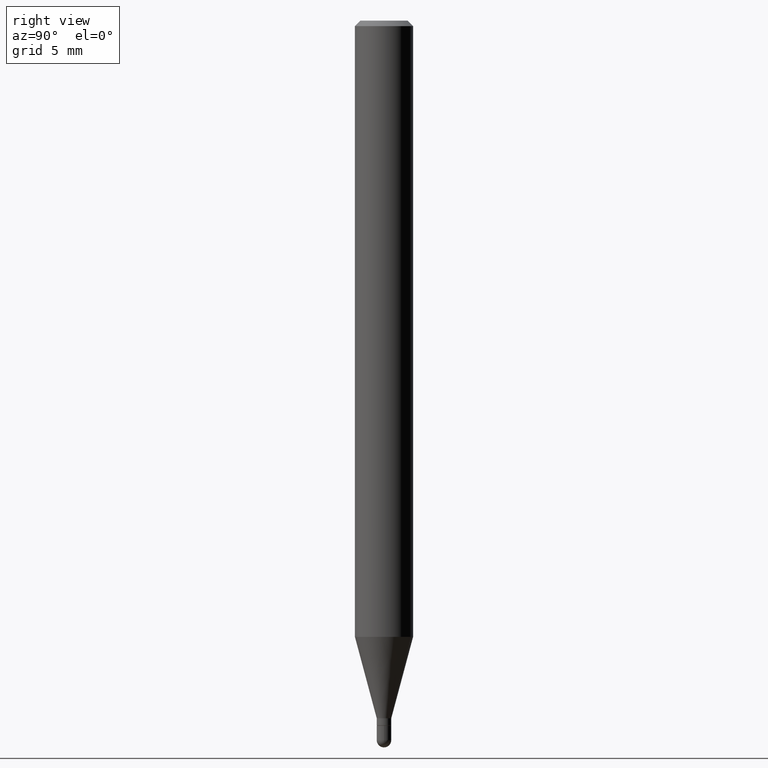
[diagram: clean part render]
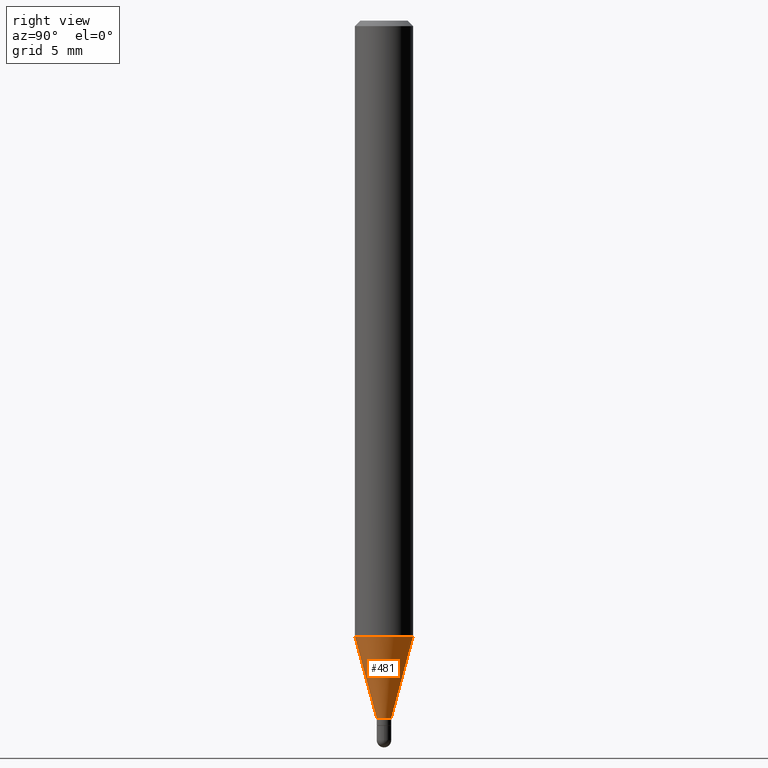
[diagram: same view with one face highlighted and labeled with its STEP entity id]
A machine part, right view. The second image highlights one B-rep face of the part: STEP entity #481.
In plain terms, the highlighted conical surface has half-angle 15 deg.
Its self-contained STEP definition (entity closure, byte-faithful):
#29 = DIRECTION ( 'NONE',  ( -6.982962677686265922E-15, -1.000000000000000000, 0.000000000000000000 ) ) ;
#33 = CARTESIAN_POINT ( 'NONE',  ( -5.499083108677528180E-16, -0.07875000000000582923, -1.669122399813057989 ) ) ;
#63 = CARTESIAN_POINT ( 'NONE',  ( -1.375643647503727702E-16, -0.01970000000000653173, -1.889499999999999957 ) ) ;
#65 = VERTEX_POINT ( 'NONE', #510 ) ;
#66 = EDGE_CURVE ( 'NONE', #222, #65, #178, .T. ) ;
#75 = CARTESIAN_POINT ( 'NONE',  ( 4.079796025343252111E-29, -5.830560560031684325E-15, -1.669122399813058433 ) ) ;
#114 = DIRECTION ( 'NONE',  ( -1.807323732225331323E-15, -0.2588190451025183525, 0.9659258262890689783 ) ) ;
#122 = CARTESIAN_POINT ( 'NONE',  ( -1.375643647503727702E-16, -0.01970000000000653173, -1.889499999999999957 ) ) ;
#125 = EDGE_LOOP ( 'NONE', ( #296, #450, #174, #167 ) ) ;
#127 = AXIS2_PLACEMENT_3D ( 'NONE', #392, #193, #355 ) ;
#158 = CARTESIAN_POINT ( 'NONE',  ( 1.399769189447854324E-16, 0.01969999999999333395, -1.889499999999999957 ) ) ;
#160 = DIRECTION ( 'NONE',  ( -6.982962677686264344E-15, -1.000000000000000000, 3.469013325287953293E-15 ) ) ;
#167 = ORIENTED_EDGE ( 'NONE', *, *, #339, .F. ) ;
#170 = AXIS2_PLACEMENT_3D ( 'NONE', #229, #385, #29 ) ;
#174 = ORIENTED_EDGE ( 'NONE', *, *, #341, .F. ) ;
#178 = CIRCLE ( 'NONE', #170, 0.01969999999999993284 ) ;
#186 = LINE ( 'NONE', #158, #243 ) ;
#193 = DIRECTION ( 'NONE',  ( -2.444276121271986138E-29, 3.493189331522186389E-15, 1.000000000000000000 ) ) ;
#222 = VERTEX_POINT ( 'NONE', #63 ) ;
#228 = FACE_OUTER_BOUND ( 'NONE', #125, .T. ) ;
#229 = CARTESIAN_POINT ( 'NONE',  ( 4.618459731143418039E-29, -6.600381241911171690E-15, -1.889499999999999957 ) ) ;
#233 = CARTESIAN_POINT ( 'NONE',  ( 5.595524044111194280E-16, 0.07874999999999415801, -1.669122399813058655 ) ) ;
#243 = VECTOR ( 'NONE', #322, 39.37007874015748854 ) ;
#269 = DIRECTION ( 'NONE',  ( -2.444276121271986138E-29, 3.493189331522186389E-15, 1.000000000000000000 ) ) ;
#287 = CIRCLE ( 'NONE', #423, 0.07875000000000000056 ) ;
#296 = ORIENTED_EDGE ( 'NONE', *, *, #66, .T. ) ;
#299 = VERTEX_POINT ( 'NONE', #233 ) ;
#301 = LINE ( 'NONE', #122, #446 ) ;
#322 = DIRECTION ( 'NONE',  ( 1.839019923739601499E-15, 0.2588190451025251249, 0.9659258262890670910 ) ) ;
#339 = EDGE_CURVE ( 'NONE', #222, #362, #301, .T. ) ;
#341 = EDGE_CURVE ( 'NONE', #362, #299, #287, .T. ) ;
#355 = DIRECTION ( 'NONE',  ( -6.982962677686265922E-15, -1.000000000000000000, 0.000000000000000000 ) ) ;
#362 = VERTEX_POINT ( 'NONE', #33 ) ;
#383 = CONICAL_SURFACE ( 'NONE', #127, 0.01969999999999993284, 0.2617993877991504625 ) ;
#385 = DIRECTION ( 'NONE',  ( -2.444276121271986138E-29, 3.493189331522186389E-15, 1.000000000000000000 ) ) ;
#392 = CARTESIAN_POINT ( 'NONE',  ( 4.618459731143418039E-29, -6.600381241911171690E-15, -1.889499999999999957 ) ) ;
#414 = EDGE_CURVE ( 'NONE', #65, #299, #186, .T. ) ;
#423 = AXIS2_PLACEMENT_3D ( 'NONE', #75, #269, #160 ) ;
#446 = VECTOR ( 'NONE', #114, 39.37007874015748854 ) ;
#450 = ORIENTED_EDGE ( 'NONE', *, *, #414, .T. ) ;
#481 = ADVANCED_FACE ( 'NONE', ( #228 ), #383, .T. ) ;
#510 = CARTESIAN_POINT ( 'NONE',  ( 3.497646616779525905E-16, 0.01969999999999333395, -1.889499999999999957 ) ) ;